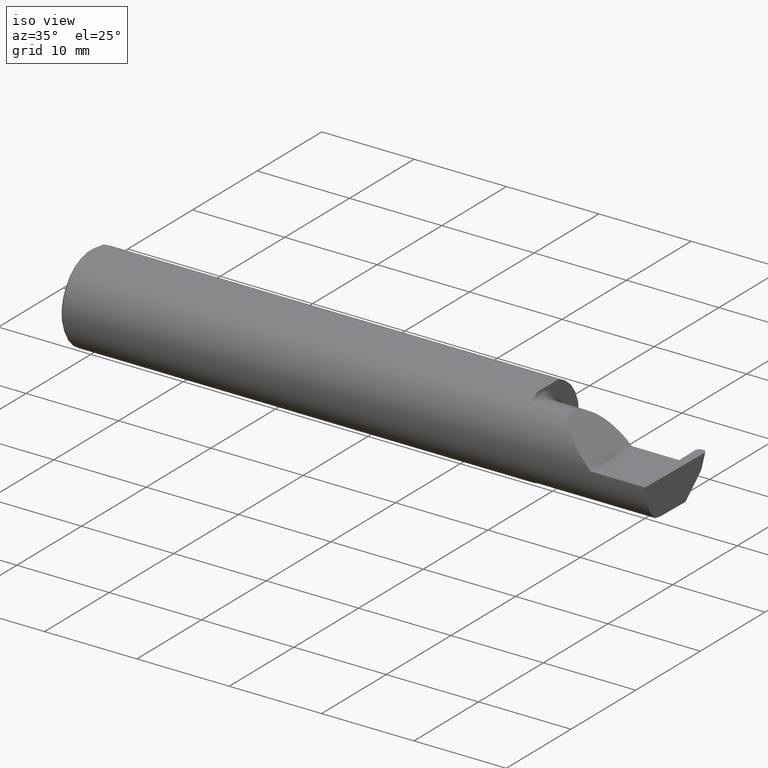
[diagram: clean part render]
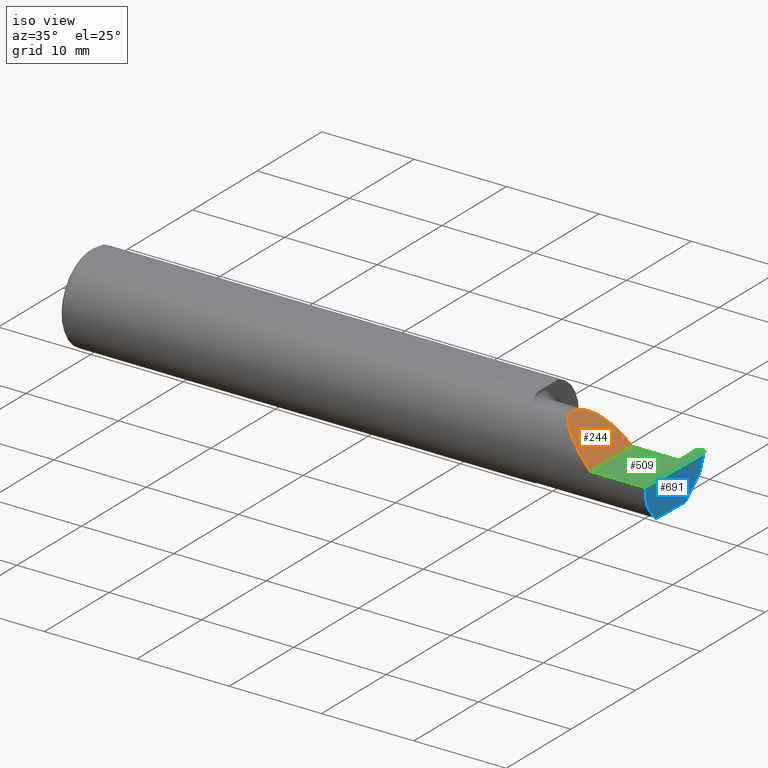
[diagram: same view with three faces highlighted in distinct colors, each labeled with its STEP entity id]
A machine part, iso view with three faces highlighted in distinct colors.
Their STEP definitions:

[orange] entity #244 — the highlighted planar face has unit normal (-0.7071, 0, -0.7071).
#16 = CARTESIAN_POINT ( 'NONE',  ( 2.260000000000000231, 0.06665000000000001479, 6.735557395310446214E-17 ) ) ;
#20 = CARTESIAN_POINT ( 'NONE',  ( 2.150065971957465294, -0.1623470442677542591, 0.1099340280425336325 ) ) ;
#22 = CARTESIAN_POINT ( 'NONE',  ( 2.113883229301068312, -0.1172600179964008033, 0.1461167706989302539 ) ) ;
#63 = CARTESIAN_POINT ( 'NONE',  ( 2.260000000000000231, -0.2500000000000000555, 2.939152317953647352E-17 ) ) ;
#99 = EDGE_CURVE ( 'NONE', #480, #114, #376, .T. ) ;
#109 = EDGE_CURVE ( 'NONE', #380, #114, #465, .T. ) ;
#114 = VERTEX_POINT ( 'NONE', #16 ) ;
#137 = ORIENTED_EDGE ( 'NONE', *, *, #607, .F. ) ;
#179 = CARTESIAN_POINT ( 'NONE',  ( 2.155331797197862720, 0.06665000000000005642, 0.1046682028021362204 ) ) ;
#190 = CARTESIAN_POINT ( 'NONE',  ( 2.260000000000000231, -0.1873499999999999888, 2.939152317953647352E-17 ) ) ;
#238 = ORIENTED_EDGE ( 'NONE', *, *, #109, .F. ) ;
#242 = AXIS2_PLACEMENT_3D ( 'NONE', #416, #358, #243 ) ;
#243 = DIRECTION ( 'NONE',  ( -0.7071067811865509034, 0.000000000000000000, 0.7071067811865440200 ) ) ;
#244 = ADVANCED_FACE ( 'NONE', ( #361 ), #246, .F. ) ;
#246 = PLANE ( 'NONE',  #242 ) ;
#358 = DIRECTION ( 'NONE',  ( -0.7071067811865441310, 0.000000000000000000, -0.7071067811865510144 ) ) ;
#361 = FACE_OUTER_BOUND ( 'NONE', #619, .T. ) ;
#376 = LINE ( 'NONE', #63, #660 ) ;
#380 = VERTEX_POINT ( 'NONE', #540 ) ;
#397 =( BOUNDED_CURVE ( )  B_SPLINE_CURVE ( 3, ( #190, #476, #20, #638 ),
 .UNSPECIFIED., .F., .F. ) 
 B_SPLINE_CURVE_WITH_KNOTS ( ( 4, 4 ),
 ( 4.712388980384688786, 5.606916381293135743 ),
 .UNSPECIFIED. ) 
 CURVE ( )  GEOMETRIC_REPRESENTATION_ITEM ( )  RATIONAL_B_SPLINE_CURVE ( ( 1.000000000000000000, 0.9344226172588803170, 0.9344226172588803170, 1.000000000000000000 ) ) 
 REPRESENTATION_ITEM ( '' )  );
#416 = CARTESIAN_POINT ( 'NONE',  ( 2.260000000000000231, -0.2500000000000000555, 2.939152317953647352E-17 ) ) ;
#465 =( BOUNDED_CURVE ( )  B_SPLINE_CURVE ( 3, ( #22, #682, #179, #612 ),
 .UNSPECIFIED., .F., .T. ) 
 B_SPLINE_CURVE_WITH_KNOTS ( ( 4, 4 ),
 ( 6.055147272130141367, 7.853981633974482790 ),
 .UNSPECIFIED. ) 
 CURVE ( )  GEOMETRIC_REPRESENTATION_ITEM ( )  RATIONAL_B_SPLINE_CURVE ( ( 1.000000000000000000, 0.7480442670255265103, 0.7480442670255265103, 1.000000000000000000 ) ) 
 REPRESENTATION_ITEM ( '' )  );
#476 = CARTESIAN_POINT ( 'NONE',  ( 2.202189699843948745, -0.1873500000000000443, 0.05781030015605096578 ) ) ;
#480 = VERTEX_POINT ( 'NONE', #618 ) ;
#540 = CARTESIAN_POINT ( 'NONE',  ( 2.113883229301068312, -0.1172600179964008033, 0.1461167706989302539 ) ) ;
#607 = EDGE_CURVE ( 'NONE', #480, #380, #397, .T. ) ;
#612 = CARTESIAN_POINT ( 'NONE',  ( 2.260000000000000231, 0.06665000000000001479, 6.735557395310446214E-17 ) ) ;
#615 = DIRECTION ( 'NONE',  ( -0.000000000000000000, 1.000000000000000000, -0.000000000000000000 ) ) ;
#618 = CARTESIAN_POINT ( 'NONE',  ( 2.260000000000000231, -0.1873499999999999888, 2.939152317953647352E-17 ) ) ;
#619 = EDGE_LOOP ( 'NONE', ( #238, #137, #622 ) ) ;
#622 = ORIENTED_EDGE ( 'NONE', *, *, #99, .T. ) ;
#638 = CARTESIAN_POINT ( 'NONE',  ( 2.113883229301068312, -0.1172600179964008033, 0.1461167706989302539 ) ) ;
#660 = VECTOR ( 'NONE', #615, 39.37007874015748143 ) ;
#682 = CARTESIAN_POINT ( 'NONE',  ( 2.090221225029925467, -0.01530148607434167994, 0.1697787749700728765 ) ) ;

[blue] entity #691 — the highlighted planar face has unit normal (-0.9992, 0.0174, 0.0349).
#8 = VERTEX_POINT ( 'NONE', #708 ) ;
#9 = LINE ( 'NONE', #223, #251 ) ;
#10 = ORIENTED_EDGE ( 'NONE', *, *, #500, .T. ) ;
#18 = ORIENTED_EDGE ( 'NONE', *, *, #363, .T. ) ;
#43 = CARTESIAN_POINT ( 'NONE',  ( 2.490236123071934315, -0.09477667630339453586, -0.1500000000000000777 ) ) ;
#88 = VERTEX_POINT ( 'NONE', #497 ) ;
#89 = FACE_OUTER_BOUND ( 'NONE', #707, .T. ) ;
#106 = CARTESIAN_POINT ( 'NONE',  ( 2.490435576448724042, -0.08335000000000064579, -0.1500000000000000500 ) ) ;
#107 = ORIENTED_EDGE ( 'NONE', *, *, #294, .F. ) ;
#183 = EDGE_CURVE ( 'NONE', #88, #677, #225, .T. ) ;
#188 = LINE ( 'NONE', #407, #694 ) ;
#191 = CARTESIAN_POINT ( 'NONE',  ( 2.490435576448724042, -0.08335000000000064579, -0.1500000000000000500 ) ) ;
#194 = VERTEX_POINT ( 'NONE', #297 ) ;
#200 = CARTESIAN_POINT ( 'NONE',  ( 2.493859163031828086, -0.1873499999999999888, 0.000000000000000000 ) ) ;
#214 = LINE ( 'NONE', #654, #604 ) ;
#218 = VECTOR ( 'NONE', #462, 39.37007874015748143 ) ;
#220 = ORIENTED_EDGE ( 'NONE', *, *, #666, .T. ) ;
#223 = CARTESIAN_POINT ( 'NONE',  ( 2.499996951313945281, 0.1642836551803450174, 0.000000000000000000 ) ) ;
#225 = LINE ( 'NONE', #519, #218 ) ;
#231 = ORIENTED_EDGE ( 'NONE', *, *, #422, .F. ) ;
#234 = DIRECTION ( 'NONE',  ( -0.01745240643727691970, -0.9998476951563912696, 0.000000000000000000 ) ) ;
#245 = PLANE ( 'NONE',  #383 ) ;
#251 = VECTOR ( 'NONE', #234, 39.37007874015748143 ) ;
#261 = CARTESIAN_POINT ( 'NONE',  ( 2.490083369990258255, -0.1061291577212410131, -0.1486999626928447171 ) ) ;
#287 = DIRECTION ( 'NONE',  ( 0.03858184836401813700, 0.3087869137032490663, 0.9503484007996424454 ) ) ;
#291 = DIRECTION ( 'NONE',  ( 0.03490480639812536257, 0.000000000000000000, 0.9993906415863165194 ) ) ;
#294 = EDGE_CURVE ( 'NONE', #194, #88, #214, .T. ) ;
#296 = DIRECTION ( 'NONE',  ( -0.9992386149554827179, 0.01744177490282357301, 0.03489949670250104552 ) ) ;
#297 = CARTESIAN_POINT ( 'NONE',  ( 2.497168558062964117, 0.1409715355924573699, -0.06933151595069257656 ) ) ;
#347 = CARTESIAN_POINT ( 'NONE',  ( 2.499996951313945281, 0.1642836551803450174, 0.000000000000000000 ) ) ;
#363 = EDGE_CURVE ( 'NONE', #464, #677, #518, .T. ) ;
#369 =( BOUNDED_CURVE ( )  B_SPLINE_CURVE ( 3, ( #603, #549, #600, #200 ),
 .UNSPECIFIED., .F., .F. ) 
 B_SPLINE_CURVE_WITH_KNOTS ( ( 4, 4 ),
 ( 0.2128041086811019444, 1.107331509589550622 ),
 .UNSPECIFIED. ) 
 CURVE ( )  GEOMETRIC_REPRESENTATION_ITEM ( )  RATIONAL_B_SPLINE_CURVE ( ( 1.000000000000000000, 0.9344226172588800949, 0.9344226172588800949, 1.000000000000000000 ) ) 
 REPRESENTATION_ITEM ( '' )  );
#370 = DIRECTION ( 'NONE',  ( -0.03701368837992478206, -0.7066222423871548752, -0.7066222423871629799 ) ) ;
#383 = AXIS2_PLACEMENT_3D ( 'NONE', #347, #296, #291 ) ;
#389 = VERTEX_POINT ( 'NONE', #482 ) ;
#407 = CARTESIAN_POINT ( 'NONE',  ( 2.499992621943094573, 0.1635737178782527834, 0.0002308483745339466858 ) ) ;
#422 = EDGE_CURVE ( 'NONE', #464, #389, #369, .T. ) ;
#462 = DIRECTION ( 'NONE',  ( -0.01745240643727691970, -0.9998476951563912696, 0.000000000000000000 ) ) ;
#464 = VERTEX_POINT ( 'NONE', #553 ) ;
#482 = CARTESIAN_POINT ( 'NONE',  ( 2.493859163031828086, -0.1873499999999999888, 0.000000000000000000 ) ) ;
#497 = CARTESIAN_POINT ( 'NONE',  ( 2.492943049790545818, 0.06030305154315080546, -0.1500000000000000500 ) ) ;
#500 = EDGE_CURVE ( 'NONE', #8, #389, #9, .T. ) ;
#518 =( BOUNDED_CURVE ( )  B_SPLINE_CURVE ( 3, ( #536, #261, #43, #106 ),
 .UNSPECIFIED., .F., .F. ) 
 B_SPLINE_CURVE_WITH_KNOTS ( ( 4, 4 ),
 ( 0.2354267821558997942, 0.4634648172053384974 ),
 .UNSPECIFIED. ) 
 CURVE ( )  GEOMETRIC_REPRESENTATION_ITEM ( )  RATIONAL_B_SPLINE_CURVE ( ( 1.000000000000000000, 0.9956712472009933146, 0.9956712472009933146, 1.000000000000000000 ) ) 
 REPRESENTATION_ITEM ( '' )  );
#519 = CARTESIAN_POINT ( 'NONE',  ( 2.490509514448783879, -0.07911409481351171225, -0.1500000000000000500 ) ) ;
#536 = CARTESIAN_POINT ( 'NONE',  ( 2.489979300894684666, -0.1172600179964005257, -0.1461167706989304760 ) ) ;
#549 = CARTESIAN_POINT ( 'NONE',  ( 2.490456025610515045, -0.1623470442677540371, -0.1099340280425339517 ) ) ;
#553 = CARTESIAN_POINT ( 'NONE',  ( 2.489979300894684666, -0.1172600179964005257, -0.1461167706989304760 ) ) ;
#600 = CARTESIAN_POINT ( 'NONE',  ( 2.491840075348995764, -0.1873500000000000165, -0.05781030015605122946 ) ) ;
#603 = CARTESIAN_POINT ( 'NONE',  ( 2.489979300894684666, -0.1172600179964005257, -0.1461167706989304760 ) ) ;
#604 = VECTOR ( 'NONE', #370, 39.37007874015748854 ) ;
#654 = CARTESIAN_POINT ( 'NONE',  ( 2.495384912923582110, 0.1069202593436241466, -0.1033827921995261745 ) ) ;
#666 = EDGE_CURVE ( 'NONE', #194, #8, #188, .T. ) ;
#677 = VERTEX_POINT ( 'NONE', #191 ) ;
#681 = ORIENTED_EDGE ( 'NONE', *, *, #183, .F. ) ;
#691 = ADVANCED_FACE ( 'NONE', ( #89 ), #245, .F. ) ;
#694 = VECTOR ( 'NONE', #287, 39.37007874015748854 ) ;
#707 = EDGE_LOOP ( 'NONE', ( #107, #220, #10, #231, #18, #681 ) ) ;
#708 = CARTESIAN_POINT ( 'NONE',  ( 2.499983250056980300, 0.1634987106945233470, 0.000000000000000000 ) ) ;

[green] entity #509 — the highlighted planar face has unit normal (-0, 0, -1).
#3 = DIRECTION ( 'NONE',  ( -1.000000000000000000, -0.000000000000000000, -0.000000000000000000 ) ) ;
#8 = VERTEX_POINT ( 'NONE', #708 ) ;
#9 = LINE ( 'NONE', #223, #251 ) ;
#14 = CARTESIAN_POINT ( 'NONE',  ( 2.491999529393823742, 0.1846499999999998975, -1.473175192682373633E-18 ) ) ;
#16 = CARTESIAN_POINT ( 'NONE',  ( 2.260000000000000231, 0.06665000000000001479, 6.735557395310446214E-17 ) ) ;
#32 = DIRECTION ( 'NONE',  ( 1.000000000000000000, -1.209262122756677455E-14, -0.000000000000000000 ) ) ;
#36 = ORIENTED_EDGE ( 'NONE', *, *, #679, .F. ) ;
#63 = CARTESIAN_POINT ( 'NONE',  ( 2.260000000000000231, -0.2500000000000000555, 2.939152317953647352E-17 ) ) ;
#71 = EDGE_CURVE ( 'NONE', #389, #480, #267, .T. ) ;
#98 = DIRECTION ( 'NONE',  ( 1.000000000000000000, -0.000000000000000000, -0.000000000000000000 ) ) ;
#99 = EDGE_CURVE ( 'NONE', #480, #114, #376, .T. ) ;
#100 = CARTESIAN_POINT ( 'NONE',  ( 3.749399456654646757E-32, -0.1873499999999999610, 3.061616997868383634E-16 ) ) ;
#114 = VERTEX_POINT ( 'NONE', #16 ) ;
#118 = DIRECTION ( 'NONE',  ( -1.000000000000000000, 0.000000000000000000, 1.224646799147353947E-16 ) ) ;
#119 = ORIENTED_EDGE ( 'NONE', *, *, #485, .T. ) ;
#123 = CARTESIAN_POINT ( 'NONE',  ( 2.479744952083223097, 0.1846500000000000363, 0.000000000000000000 ) ) ;
#154 = CARTESIAN_POINT ( 'NONE',  ( 2.454613552814877142, 0.06664999999999994540, 0.000000000000000000 ) ) ;
#160 = VERTEX_POINT ( 'NONE', #168 ) ;
#168 = CARTESIAN_POINT ( 'NONE',  ( 2.459982749943019797, 0.1634987106945234303, 0.000000000000000000 ) ) ;
#169 = CARTESIAN_POINT ( 'NONE',  ( 2.479744952083223097, 0.1846500000000000363, 0.000000000000000000 ) ) ;
#178 = ORIENTED_EDGE ( 'NONE', *, *, #99, .F. ) ;
#180 = CARTESIAN_POINT ( 'NONE',  ( 2.459766740043397792, 0.1758739095557346477, 2.477352571440044463E-18 ) ) ;
#192 = DIRECTION ( 'NONE',  ( -0.01745240643727647561, 0.9998476951563912696, -0.000000000000000000 ) ) ;
#201 = EDGE_CURVE ( 'NONE', #326, #288, #352, .T. ) ;
#221 = ORIENTED_EDGE ( 'NONE', *, *, #71, .F. ) ;
#223 = CARTESIAN_POINT ( 'NONE',  ( 2.499996951313945281, 0.1642836551803450174, 0.000000000000000000 ) ) ;
#234 = DIRECTION ( 'NONE',  ( -0.01745240643727691970, -0.9998476951563912696, 0.000000000000000000 ) ) ;
#239 = EDGE_CURVE ( 'NONE', #288, #160, #583, .T. ) ;
#251 = VECTOR ( 'NONE', #234, 39.37007874015748143 ) ;
#256 = CARTESIAN_POINT ( 'NONE',  ( 2.461673250476406061, 0.06664999999999984825, 0.000000000000000000 ) ) ;
#267 = LINE ( 'NONE', #100, #342 ) ;
#268 = CARTESIAN_POINT ( 'NONE',  ( 2.500199259956601416, 0.1758739095557345922, -2.477352571440047159E-18 ) ) ;
#272 = CARTESIAN_POINT ( 'NONE',  ( 2.467966470606175911, 0.1846499999999999808, 1.473175192682370359E-18 ) ) ;
#276 = CARTESIAN_POINT ( 'NONE',  ( 2.480221047916776556, 0.1846500000000000363, 0.000000000000000000 ) ) ;
#288 = VERTEX_POINT ( 'NONE', #256 ) ;
#326 = VERTEX_POINT ( 'NONE', #154 ) ;
#332 = CARTESIAN_POINT ( 'NONE',  ( 2.499983250056980300, 0.1634987106945233470, 0.000000000000000000 ) ) ;
#342 = VECTOR ( 'NONE', #3, 39.37007874015748143 ) ;
#348 = ORIENTED_EDGE ( 'NONE', *, *, #239, .F. ) ;
#352 = LINE ( 'NONE', #409, #382 ) ;
#353 = EDGE_CURVE ( 'NONE', #501, #521, #437, .T. ) ;
#362 = EDGE_LOOP ( 'NONE', ( #611, #119, #348, #550, #36, #178, #221, #445, #573 ) ) ;
#376 = LINE ( 'NONE', #63, #660 ) ;
#382 = VECTOR ( 'NONE', #32, 39.37007874015748143 ) ;
#389 = VERTEX_POINT ( 'NONE', #482 ) ;
#406 = VECTOR ( 'NONE', #520, 39.37007874015748143 ) ;
#409 = CARTESIAN_POINT ( 'NONE',  ( 2.461673250476406061, 0.06664999999999984825, 0.000000000000000000 ) ) ;
#415 = VECTOR ( 'NONE', #192, 39.37007874015748854 ) ;
#433 = CARTESIAN_POINT ( 'NONE',  ( -0.001039370078740541395, 0.1846500000000000363, 0.000000000000000000 ) ) ;
#437 = LINE ( 'NONE', #433, #627 ) ;
#443 = AXIS2_PLACEMENT_3D ( 'NONE', #621, #610, #118 ) ;
#445 = ORIENTED_EDGE ( 'NONE', *, *, #500, .F. ) ;
#448 = CARTESIAN_POINT ( 'NONE',  ( 2.459982749943019797, 0.1634987106945234303, 0.000000000000000000 ) ) ;
#452 = CARTESIAN_POINT ( 'NONE',  ( 2.480221047916776556, 0.1846500000000000363, 0.000000000000000000 ) ) ;
#473 = CARTESIAN_POINT ( 'NONE',  ( 1.949999999999999956, 0.06665000000000007030, 6.735557395310446214E-17 ) ) ;
#480 = VERTEX_POINT ( 'NONE', #618 ) ;
#482 = CARTESIAN_POINT ( 'NONE',  ( 2.493859163031828086, -0.1873499999999999888, 0.000000000000000000 ) ) ;
#485 = EDGE_CURVE ( 'NONE', #501, #160, #546, .T. ) ;
#500 = EDGE_CURVE ( 'NONE', #8, #389, #9, .T. ) ;
#501 = VERTEX_POINT ( 'NONE', #169 ) ;
#509 = ADVANCED_FACE ( 'NONE', ( #680 ), #555, .F. ) ;
#520 = DIRECTION ( 'NONE',  ( 1.000000000000000000, -2.008845683092791284E-16, 0.000000000000000000 ) ) ;
#521 = VERTEX_POINT ( 'NONE', #452 ) ;
#527 = CARTESIAN_POINT ( 'NONE',  ( 2.459969048686054816, 0.1642836551803449618, 0.000000000000000000 ) ) ;
#546 =( BOUNDED_CURVE ( )  B_SPLINE_CURVE ( 3, ( #123, #272, #180, #448 ),
 .UNSPECIFIED., .F., .F. ) 
 B_SPLINE_CURVE_WITH_KNOTS ( ( 4, 4 ),
 ( 6.164995997523364579, 7.741595932998476037 ),
 .UNSPECIFIED. ) 
 CURVE ( )  GEOMETRIC_REPRESENTATION_ITEM ( )  RATIONAL_B_SPLINE_CURVE ( ( 1.000000000000000000, 0.8033679476376966999, 0.8033679476376966999, 1.000000000000000000 ) ) 
 REPRESENTATION_ITEM ( '' )  );
#550 = ORIENTED_EDGE ( 'NONE', *, *, #201, .F. ) ;
#555 = PLANE ( 'NONE',  #443 ) ;
#564 = EDGE_CURVE ( 'NONE', #8, #521, #670, .T. ) ;
#573 = ORIENTED_EDGE ( 'NONE', *, *, #564, .T. ) ;
#583 = LINE ( 'NONE', #527, #415 ) ;
#610 = DIRECTION ( 'NONE',  ( -1.224646799147353947E-16, 0.000000000000000000, -1.000000000000000000 ) ) ;
#611 = ORIENTED_EDGE ( 'NONE', *, *, #353, .F. ) ;
#615 = DIRECTION ( 'NONE',  ( -0.000000000000000000, 1.000000000000000000, -0.000000000000000000 ) ) ;
#618 = CARTESIAN_POINT ( 'NONE',  ( 2.260000000000000231, -0.1873499999999999888, 2.939152317953647352E-17 ) ) ;
#621 = CARTESIAN_POINT ( 'NONE',  ( 2.500000000000000000, -0.2500000000000000555, 0.000000000000000000 ) ) ;
#627 = VECTOR ( 'NONE', #98, 39.37007874015748143 ) ;
#660 = VECTOR ( 'NONE', #615, 39.37007874015748143 ) ;
#670 =( BOUNDED_CURVE ( )  B_SPLINE_CURVE ( 3, ( #332, #268, #14, #276 ),
 .UNSPECIFIED., .F., .T. ) 
 B_SPLINE_CURVE_WITH_KNOTS ( ( 4, 4 ),
 ( 1.683182027770901090, 3.259781963246014325 ),
 .UNSPECIFIED. ) 
 CURVE ( )  GEOMETRIC_REPRESENTATION_ITEM ( )  RATIONAL_B_SPLINE_CURVE ( ( 1.000000000000000000, 0.8033679476376962558, 0.8033679476376962558, 1.000000000000000000 ) ) 
 REPRESENTATION_ITEM ( '' )  );
#679 = EDGE_CURVE ( 'NONE', #114, #326, #684, .T. ) ;
#680 = FACE_OUTER_BOUND ( 'NONE', #362, .T. ) ;
#684 = LINE ( 'NONE', #473, #406 ) ;
#708 = CARTESIAN_POINT ( 'NONE',  ( 2.499983250056980300, 0.1634987106945233470, 0.000000000000000000 ) ) ;